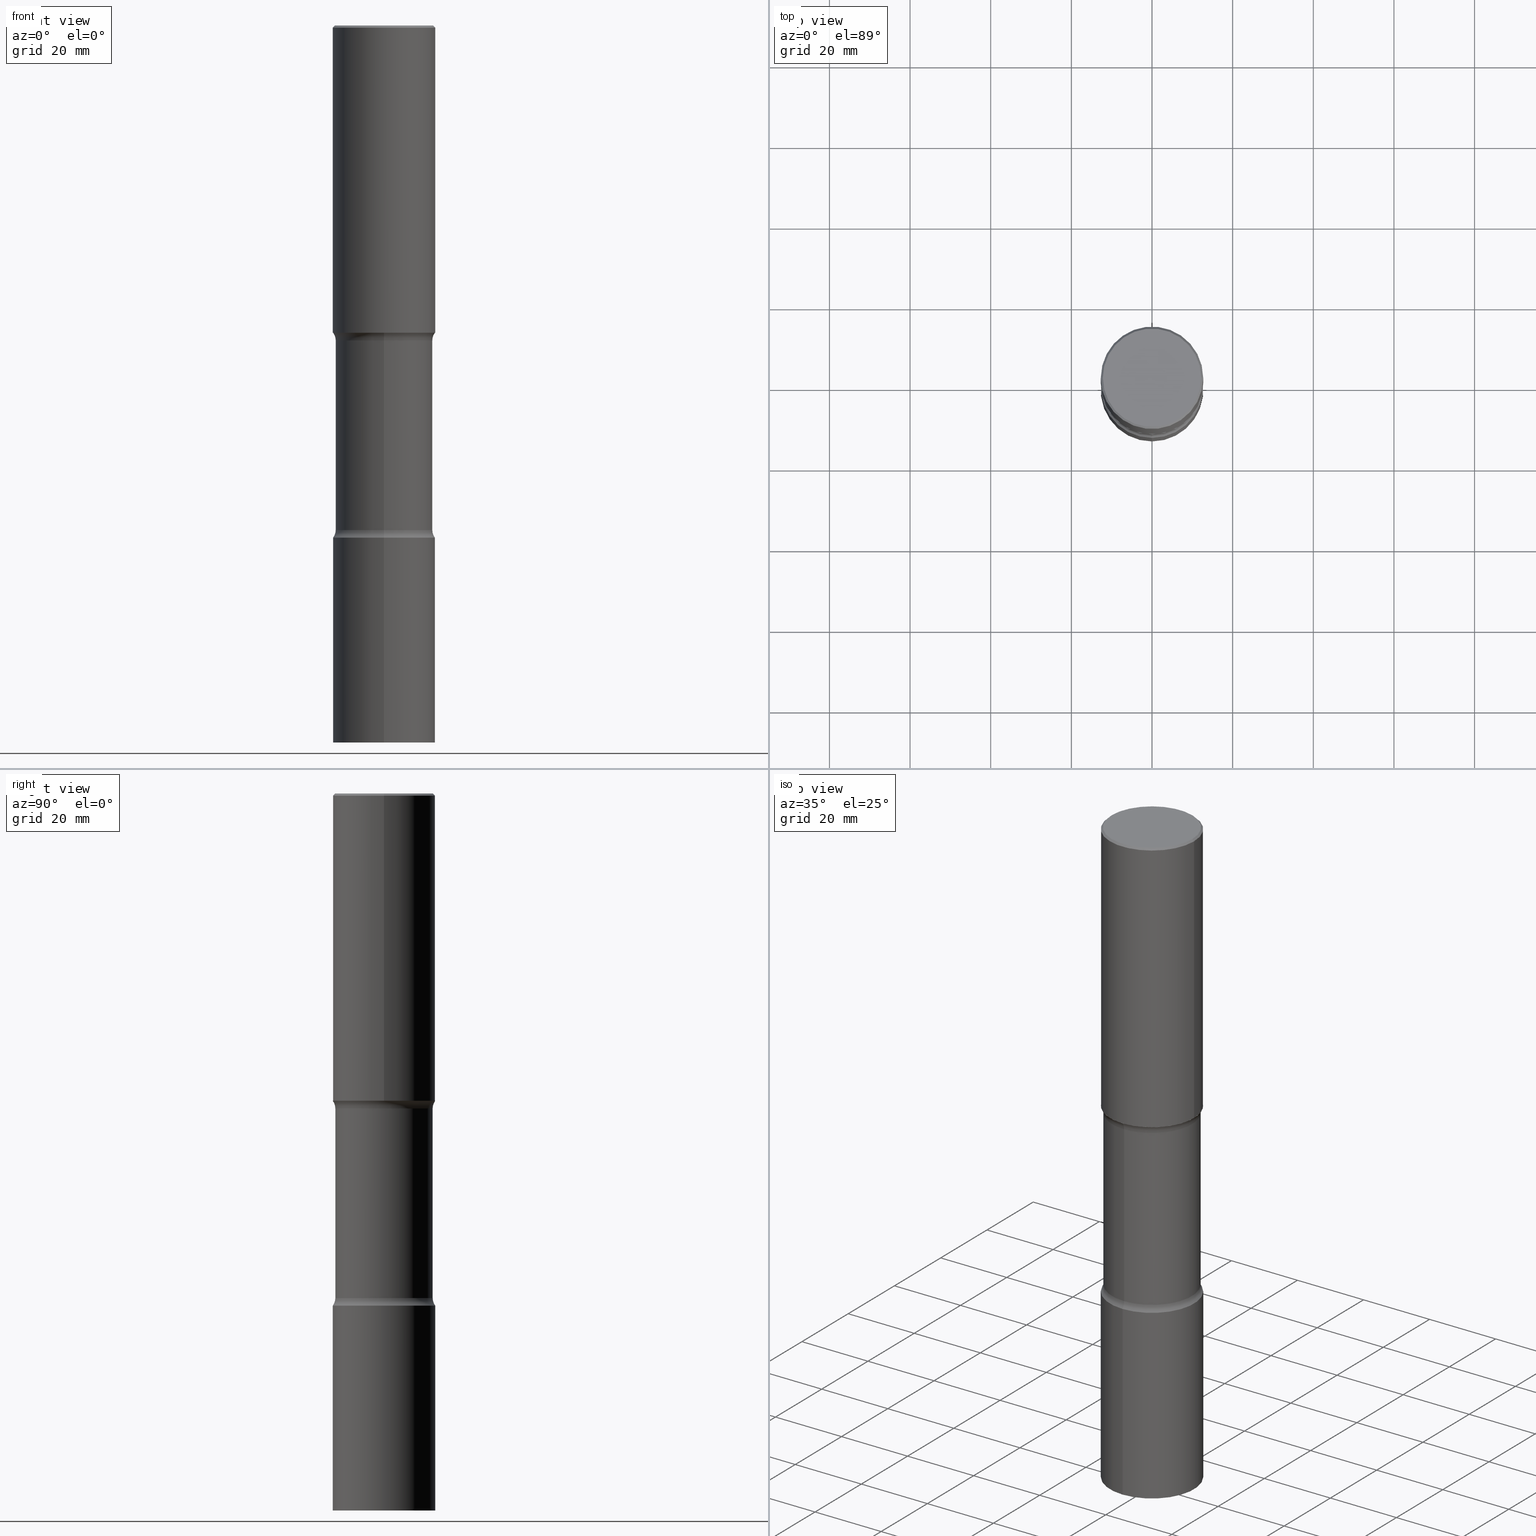
[diagram: canonical four-view strip — front | top / right | iso, engineering-drawing reading convention]
A machine part, canonical four-view strip (front | top / right | iso — engineering-drawing reading convention). The complete STEP part file that produces these views, byte-faithful:
ISO-10303-21;
HEADER;
FILE_DESCRIPTION (( 'STEP AP203' ),
    '1' );
FILE_NAME ('37955.STEP',
    '2024-03-11T13:31:00',
    ( '' ),
    ( '' ),
    'SwSTEP 2.0',
    'SolidWorks 2023',
    '' );
FILE_SCHEMA (( 'CONFIG_CONTROL_DESIGN' ));
ENDSEC;

DATA;
#1 = ORIENTED_EDGE ( 'NONE', *, *, #302, .T. ) ;
#2 = ORIENTED_EDGE ( 'NONE', *, *, #271, .T. ) ;
#3 = DIRECTION ( 'NONE',  ( 1.000000000000000000, -6.982962677686265922E-15, 4.876176775795935793E-29 ) ) ;
#4 = LINE ( 'NONE', #153, #121 ) ;
#5 = EDGE_LOOP ( 'NONE', ( #240, #502, #367, #490 ) ) ;
#6 = CARTESIAN_POINT ( 'NONE',  ( 1.222734403092567850E-28, -1.745740669421572042E-14, -4.999999999999998224 ) ) ;
#7 = AXIS2_PLACEMENT_3D ( 'NONE', #438, #268, #228 ) ;
#8 = FACE_OUTER_BOUND ( 'NONE', #177, .T. ) ;
#9 = CC_DESIGN_SECURITY_CLASSIFICATION ( #316, ( #331 ) ) ;
#10 = CARTESIAN_POINT ( 'NONE',  ( 0.4999999999999997224, -3.500078625662627502E-15, -0.02000000000000010103 ) ) ;
#11 = ORIENTED_EDGE ( 'NONE', *, *, #402, .T. ) ;
#12 = APPROVAL ( #111, 'UNSPECIFIED' ) ;
#13 = VECTOR ( 'NONE', #226, 39.37007874015748143 ) ;
#14 = AXIS2_PLACEMENT_3D ( 'NONE', #346, #301, #65 ) ;
#15 = ORIENTED_EDGE ( 'NONE', *, *, #443, .F. ) ;
#16 = ORIENTED_EDGE ( 'NONE', *, *, #186, .T. ) ;
#17 = DIRECTION ( 'NONE',  ( -1.000000000000000000, 6.982962677686265922E-15, -4.883557194083112340E-29 ) ) ;
#18 = EDGE_LOOP ( 'NONE', ( #84, #491, #30, #86 ) ) ;
#19 = DIRECTION ( 'NONE',  ( 6.982962677686265133E-15, 1.000000000000000000, -3.417455170156083034E-15 ) ) ;
#20 = EDGE_LOOP ( 'NONE', ( #210, #172, #151, #181 ) ) ;
#21 = APPROVAL_STATUS ( 'not_yet_approved' ) ;
#22 = AXIS2_PLACEMENT_3D ( 'NONE', #312, #503, #3 ) ;
#23 = CARTESIAN_POINT ( 'NONE',  ( 3.351822085289404787E-15, 0.4799999999999995937, -1.669508273909557867E-15 ) ) ;
#24 = COORDINATED_UNIVERSAL_TIME_OFFSET ( 5, 0, .BEHIND. ) ;
#25 = CARTESIAN_POINT ( 'NONE',  ( 1.222480514706871301E-28, -1.746104252040319053E-14, -4.999999999999998224 ) ) ;
#26 = EDGE_LOOP ( 'NONE', ( #1, #446, #15, #72 ) ) ;
#27 = PERSON_AND_ORGANIZATION_ROLE ( 'design_supplier' ) ;
#28 = CC_DESIGN_PERSON_AND_ORGANIZATION_ASSIGNMENT ( #501, #101, ( #448 ) ) ;
#29 = DIRECTION ( 'NONE',  ( -2.444961029413743836E-29, 3.492208504080639289E-15, 1.000000000000000000 ) ) ;
#30 = ORIENTED_EDGE ( 'NONE', *, *, #402, .F. ) ;
#31 = AXIS2_PLACEMENT_3D ( 'NONE', #35, #233, #430 ) ;
#32 = DIRECTION ( 'NONE',  ( 1.000000000000000000, -6.982962677686266711E-15, 0.000000000000000000 ) ) ;
#33 = ORIENTED_EDGE ( 'NONE', *, *, #60, .T. ) ;
#34 = APPLICATION_PROTOCOL_DEFINITION ( 'international standard', 'config_control_design', 1994, #109 ) ;
#35 = CARTESIAN_POINT ( 'NONE',  ( 1.222480514706871301E-28, -1.746104252040319053E-14, -4.999999999999998224 ) ) ;
#36 =( GEOMETRIC_REPRESENTATION_CONTEXT ( 3 ) GLOBAL_UNCERTAINTY_ASSIGNED_CONTEXT ( ( #106 ) ) GLOBAL_UNIT_ASSIGNED_CONTEXT ( ( #470, #463, #227 ) ) REPRESENTATION_CONTEXT ( 'NONE', 'WORKASPACE' ) );
#37 = CARTESIAN_POINT ( 'NONE',  ( 1.711472720589620405E-28, -2.444545952856446990E-14, -7.000000000000000000 ) ) ;
#38 = EDGE_CURVE ( 'NONE', #224, #281, #66, .T. ) ;
#39 = CARTESIAN_POINT ( 'NONE',  ( 1.191474063796412481E-28, -3.918008831735200685E-15, -2.999999999999999112 ) ) ;
#40 = DIRECTION ( 'NONE',  ( 2.445468806185136597E-29, -3.491481338843145583E-15, -1.000000000000000000 ) ) ;
#41 = DIRECTION ( 'NONE',  ( 2.497161003496522813E-29, -3.417455170156083034E-15, -1.000000000000000000 ) ) ;
#42 = AXIS2_PLACEMENT_3D ( 'NONE', #424, #67, #263 ) ;
#43 = CARTESIAN_POINT ( 'NONE',  ( 3.316907271901098961E-15, 0.4749999999999831024, -4.924999999999999822 ) ) ;
#44 = ORIENTED_EDGE ( 'NONE', *, *, #159, .T. ) ;
#45 = AXIS2_PLACEMENT_3D ( 'NONE', #223, #190, #427 ) ;
#47 = ORIENTED_EDGE ( 'NONE', *, *, #499, .T. ) ;
#46 = EDGE_CURVE ( 'NONE', #132, #308, #205, .T. ) ;
#48 = ORIENTED_EDGE ( 'NONE', *, *, #494, .F. ) ;
#49 = CARTESIAN_POINT ( 'NONE',  ( 4.189777606611879933E-15, 0.5999999999999827693, -4.925000000000000711 ) ) ;
#50 = ORIENTED_EDGE ( 'NONE', *, *, #324, .T. ) ;
#51 = EDGE_CURVE ( 'NONE', #308, #132, #283, .T. ) ;
#52 = DIRECTION ( 'NONE',  ( 1.000000000000000000, -6.982962677686267499E-15, 4.876176775795936353E-29 ) ) ;
#53 = ADVANCED_FACE ( 'NONE', ( #388 ), #142, .F. ) ;
#54 = CARTESIAN_POINT ( 'NONE',  ( 3.316907271901049263E-15, 0.4749999999999889866, -3.075000000000000178 ) ) ;
#55 = AXIS2_PLACEMENT_3D ( 'NONE', #116, #477, #472 ) ;
#56 = PERSON_AND_ORGANIZATION_ROLE ( 'creator' ) ;
#57 = AXIS2_PLACEMENT_3D ( 'NONE', #297, #189, #143 ) ;
#58 = CARTESIAN_POINT ( 'NONE',  ( 4.890937612370298557E-31, -6.982962677686327354E-17, -0.02000000000000010103 ) ) ;
#59 = ADVANCED_FACE ( 'NONE', ( #99 ), #303, .T. ) ;
#60 = EDGE_CURVE ( 'NONE', #433, #168, #126, .T. ) ;
#61 = DIRECTION ( 'NONE',  ( 6.982962677686265133E-15, 1.000000000000000000, -3.417455170156083034E-15 ) ) ;
#62 = DIRECTION ( 'NONE',  ( -6.982962677686265922E-15, -1.000000000000000000, 3.492208504080639684E-15 ) ) ;
#63 = DIRECTION ( 'NONE',  ( 2.438088387897960049E-29, -3.491481338843145188E-15, -1.000000000000000000 ) ) ;
#64 = PERSON_AND_ORGANIZATION ( #280, #458 ) ;
#65 = DIRECTION ( 'NONE',  ( 1.000000000000000000, 0.000000000000000000, 0.000000000000000000 ) ) ;
#66 = LINE ( 'NONE', #256, #13 ) ;
#67 = DIRECTION ( 'NONE',  ( 1.000000000000000000, -6.860497997771530774E-15, 4.841705438729500502E-29 ) ) ;
#68 = ORIENTED_EDGE ( 'NONE', *, *, #390, .T. ) ;
#69 = CARTESIAN_POINT ( 'NONE',  ( 1.222480514706871301E-28, -1.746104252040319053E-14, -4.999999999999998224 ) ) ;
#70 = APPROVAL_DATE_TIME ( #431, #12 ) ;
#71 = CARTESIAN_POINT ( 'NONE',  ( 0.000000000000000000, 0.000000000000000000, 0.000000000000000000 ) ) ;
#72 = ORIENTED_EDGE ( 'NONE', *, *, #186, .F. ) ;
#73 = CIRCLE ( 'NONE', #146, 0.1249999999999999584 ) ;
#74 = AXIS2_PLACEMENT_3D ( 'NONE', #134, #284, #371 ) ;
#75 = DIRECTION ( 'NONE',  ( 6.982962677686265922E-15, 1.000000000000000000, -3.417455170156083034E-15 ) ) ;
#76 = DIRECTION ( 'NONE',  ( -2.444961029413743555E-29, 3.492208504080639289E-15, 1.000000000000000000 ) ) ;
#77 = CARTESIAN_POINT ( 'NONE',  ( -4.116298798662843365E-15, -0.6000000000000107470, -3.074999999999996625 ) ) ;
#78 = AXIS2_PLACEMENT_3D ( 'NONE', #418, #465, #335 ) ;
#79 = AXIS2_PLACEMENT_3D ( 'NONE', #260, #299, #221 ) ;
#80 = DIRECTION ( 'NONE',  ( 6.982962677686265922E-15, 1.000000000000000000, -2.300503573612009450E-15 ) ) ;
#81 = LOCAL_TIME ( 9, 31, 0.000000000000000000, #288 ) ;
#82 = ORIENTED_EDGE ( 'NONE', *, *, #298, .F. ) ;
#83 = ORIENTED_EDGE ( 'NONE', *, *, #324, .F. ) ;
#84 = ORIENTED_EDGE ( 'NONE', *, *, #311, .T. ) ;
#85 = LOCAL_TIME ( 9, 31, 0.000000000000000000, #457 ) ;
#86 = ORIENTED_EDGE ( 'NONE', *, *, #271, .F. ) ;
#87 = CALENDAR_DATE ( 2024, 11, 3 ) ;
#88 = CARTESIAN_POINT ( 'NONE',  ( 7.424434616114944554E-29, -1.087289751662588185E-14, -3.074999999999998845 ) ) ;
#89 = ORIENTED_EDGE ( 'NONE', *, *, #276, .T. ) ;
#90 = EDGE_CURVE ( 'NONE', #164, #122, #138, .T. ) ;
#91 = DIRECTION ( 'NONE',  ( -6.982962677686269077E-15, -1.000000000000000000, 0.000000000000000000 ) ) ;
#92 = ORIENTED_EDGE ( 'NONE', *, *, #494, .T. ) ;
#93 = PERSON_AND_ORGANIZATION ( #280, #458 ) ;
#94 = PRODUCT_DEFINITION ( 'UNKNOWN', '', #331, #358 ) ;
#95 = CARTESIAN_POINT ( 'NONE',  ( 3.491481338843254840E-15, 0.4999999999999824585, -5.000000000000000000 ) ) ;
#96 = AXIS2_PLACEMENT_3D ( 'NONE', #23, #63, #461 ) ;
#97 = CIRCLE ( 'NONE', #206, 0.4999999999999998335 ) ;
#98 = DIRECTION ( 'NONE',  ( -6.982962677686268288E-15, -1.000000000000000000, 0.000000000000000000 ) ) ;
#99 = FACE_OUTER_BOUND ( 'NONE', #26, .T. ) ;
#100 = DATE_TIME_ROLE ( 'creation_date' ) ;
#101 = PERSON_AND_ORGANIZATION_ROLE ( 'design_owner' ) ;
#102 = EDGE_CURVE ( 'NONE', #281, #451, #252, .T. ) ;
#103 = DIRECTION ( 'NONE',  ( 2.497161003496523093E-29, -3.417455170156083034E-15, -1.000000000000000000 ) ) ;
#104 = APPLICATION_PROTOCOL_DEFINITION ( 'international standard', 'config_control_design', 1994, #182 ) ;
#105 = DIRECTION ( 'NONE',  ( 2.497161003496523093E-29, -3.417455170156083034E-15, -1.000000000000000000 ) ) ;
#106 = UNCERTAINTY_MEASURE_WITH_UNIT (LENGTH_MEASURE( 1.000000000000000082E-05 ), #470, 'distance_accuracy_value', 'NONE');
#107 = AXIS2_PLACEMENT_3D ( 'NONE', #384, #345, #32 ) ;
#108 = DIRECTION ( 'NONE',  ( 1.000000000000000000, -6.982962677686266711E-15, 4.876036955247133327E-29 ) ) ;
#109 = APPLICATION_CONTEXT ( 'configuration controlled 3d designs of mechanical parts and assemblies' ) ;
#110 = CARTESIAN_POINT ( 'NONE',  ( 4.890937612370298557E-31, -6.982962677686327354E-17, -0.02000000000000010103 ) ) ;
#111 = APPROVAL_STATUS ( 'not_yet_approved' ) ;
#112 = DIRECTION ( 'NONE',  ( 6.982962677686265133E-15, 1.000000000000000000, -3.450755360418017527E-15 ) ) ;
#113 = CARTESIAN_POINT ( 'NONE',  ( 7.417770215337909421E-29, -1.088244131785273239E-14, -3.074999999999998845 ) ) ;
#114 = ORIENTED_EDGE ( 'NONE', *, *, #338, .T. ) ;
#115 = CIRCLE ( 'NONE', #57, 0.4799999999999995937 ) ;
#116 = CARTESIAN_POINT ( 'NONE',  ( 1.222734403092567850E-28, -1.745740669421572042E-14, -4.999999999999998224 ) ) ;
#117 = DIRECTION ( 'NONE',  ( -6.982962677686265922E-15, -1.000000000000000000, 3.492208504080639684E-15 ) ) ;
#118 = CYLINDRICAL_SURFACE ( 'NONE', #294, 0.4999999999999998335 ) ;
#119 = EDGE_LOOP ( 'NONE', ( #250, #47 ) ) ;
#120 = AXIS2_PLACEMENT_3D ( 'NONE', #69, #393, #191 ) ;
#121 = VECTOR ( 'NONE', #313, 39.37007874015748143 ) ;
#122 = VERTEX_POINT ( 'NONE', #349 ) ;
#123 = EDGE_LOOP ( 'NONE', ( #50, #258, #332, #405 ) ) ;
#124 = ORIENTED_EDGE ( 'NONE', *, *, #46, .F. ) ;
#125 = DIRECTION ( 'NONE',  ( 2.497161003496523093E-29, -3.417455170156083034E-15, -1.000000000000000000 ) ) ;
#126 = CIRCLE ( 'NONE', #78, 0.4749999999999998668 ) ;
#127 = CIRCLE ( 'NONE', #42, 0.1249999999999997641 ) ;
#128 = VERTEX_POINT ( 'NONE', #188 ) ;
#129 = PERSON_AND_ORGANIZATION_ROLE ( 'classification_officer' ) ;
#130 = CARTESIAN_POINT ( 'NONE',  ( 3.552713678800670534E-15, 0.4999999999999822919, -5.000000000000000000 ) ) ;
#131 = DIMENSIONAL_EXPONENTS ( 1.000000000000000000, 0.000000000000000000, 0.000000000000000000, 0.000000000000000000, 0.000000000000000000, 0.000000000000000000, 0.000000000000000000 ) ;
#132 = VERTEX_POINT ( 'NONE', #340 ) ;
#133 = PRODUCT_DEFINITION_SHAPE ( 'NONE', 'NONE',  #94 ) ;
#134 = CARTESIAN_POINT ( 'NONE',  ( 6.435501798008941756E-29, -3.973871813642189428E-14, -6.999999999999998224 ) ) ;
#135 = CARTESIAN_POINT ( 'NONE',  ( 1.222480514706871301E-28, -1.746104252040319053E-14, -4.999999999999998224 ) ) ;
#136 = LINE ( 'NONE', #412, #197 ) ;
#137 = ORIENTED_EDGE ( 'NONE', *, *, #319, .F. ) ;
#138 = CIRCLE ( 'NONE', #407, 0.4999999999999998335 ) ;
#139 = AXIS2_PLACEMENT_3D ( 'NONE', #237, #450, #489 ) ;
#140 = CARTESIAN_POINT ( 'NONE',  ( -0.5000000000000000000, -1.719423142852647319E-15, -2.999999999999999556 ) ) ;
#141 = DIRECTION ( 'NONE',  ( -2.445468806185136877E-29, 3.491481338843145188E-15, 1.000000000000000000 ) ) ;
#142 = PLANE ( 'NONE',  #96 ) ;
#143 = DIRECTION ( 'NONE',  ( 1.000000000000000000, -6.982962677686266711E-15, 4.876036955247133327E-29 ) ) ;
#144 = DIRECTION ( 'NONE',  ( 6.982962677686265133E-15, 1.000000000000000000, -3.278217592397115073E-15 ) ) ;
#145 = EDGE_CURVE ( 'NONE', #273, #281, #504, .T. ) ;
#146 = AXIS2_PLACEMENT_3D ( 'NONE', #77, #272, #356 ) ;
#147 = CC_DESIGN_APPROVAL ( #435, ( #316 ) ) ;
#148 = COORDINATED_UNIVERSAL_TIME_OFFSET ( 5, 0, .BEHIND. ) ;
#149 = CARTESIAN_POINT ( 'NONE',  ( -3.258736548941305678E-15, -0.4750000000000244582, -6.999999999999997335 ) ) ;
#150 = CC_DESIGN_PERSON_AND_ORGANIZATION_ASSIGNMENT ( #300, #462, ( #94 ) ) ;
#151 = ORIENTED_EDGE ( 'NONE', *, *, #145, .T. ) ;
#152 = MECHANICAL_CONTEXT ( 'NONE', #109, 'mechanical' ) ;
#153 = CARTESIAN_POINT ( 'NONE',  ( 3.552713678800499352E-15, 0.4999999999999998335, -1.746104252040319250E-15 ) ) ;
#154 = CYLINDRICAL_SURFACE ( 'NONE', #488, 0.4750000000000001443 ) ;
#155 = AXIS2_PLACEMENT_3D ( 'NONE', #113, #471, #112 ) ;
#156 = CIRCLE ( 'NONE', #278, 0.4750000000000003109 ) ;
#157 = LINE ( 'NONE', #198, #235 ) ;
#158 = PLANE ( 'NONE',  #467 ) ;
#159 = EDGE_CURVE ( 'NONE', #362, #285, #213, .T. ) ;
#161 = EDGE_CURVE ( 'NONE', #128, #451, #306, .T. ) ;
#160 = ORIENTED_EDGE ( 'NONE', *, *, #51, .F. ) ;
#162 = AXIS2_PLACEMENT_3D ( 'NONE', #296, #183, #144 ) ;
#163 = CIRCLE ( 'NONE', #139, 0.5000000000000000000 ) ;
#164 = VERTEX_POINT ( 'NONE', #95 ) ;
#165 = EDGE_CURVE ( 'NONE', #451, #281, #277, .T. ) ;
#166 = ORIENTED_EDGE ( 'NONE', *, *, #161, .F. ) ;
#167 = DIRECTION ( 'NONE',  ( 2.445468806185136597E-29, -3.491481338843145583E-15, -1.000000000000000000 ) ) ;
#168 = VERTEX_POINT ( 'NONE', #54 ) ;
#169 = DIRECTION ( 'NONE',  ( 2.497161003496523093E-29, -3.417455170156083034E-15, -1.000000000000000000 ) ) ;
#170 = CLOSED_SHELL ( 'NONE', ( #59, #336, #351, #428, #275, #187, #179, #243 ) ) ;
#171 = LOCAL_TIME ( 9, 31, 0.000000000000000000, #148 ) ;
#172 = ORIENTED_EDGE ( 'NONE', *, *, #267, .T. ) ;
#173 = CARTESIAN_POINT ( 'NONE',  ( 1.203751807180647490E-28, -1.720473338264148338E-14, -4.924999999999998046 ) ) ;
#174 = DIRECTION ( 'NONE',  ( -2.445468806185136597E-29, 3.491481338843145583E-15, 1.000000000000000000 ) ) ;
#175 = PRODUCT_RELATED_PRODUCT_CATEGORY ( 'detail', '', ( #448 ) ) ;
#176 = CARTESIAN_POINT ( 'NONE',  ( 1.204393387046179415E-28, -1.719554559380248700E-14, -4.924999999999998046 ) ) ;
#177 = EDGE_LOOP ( 'NONE', ( #444, #89 ) ) ;
#178 = DATE_AND_TIME ( #290, #375 ) ;
#179 = ADVANCED_FACE ( 'NONE', ( #216 ), #269, .F. ) ;
#180 = FACE_OUTER_BOUND ( 'NONE', #20, .T. ) ;
#181 = ORIENTED_EDGE ( 'NONE', *, *, #165, .F. ) ;
#182 = APPLICATION_CONTEXT ( 'configuration controlled 3d designs of mechanical parts and assemblies' ) ;
#183 = DIRECTION ( 'NONE',  ( 2.497161003496523093E-29, -3.417455170156083034E-15, -1.000000000000000000 ) ) ;
#184 = APPROVAL_DATE_TIME ( #248, #435 ) ;
#185 = APPROVAL_PERSON_ORGANIZATION ( #341, #481, #333 ) ;
#186 = EDGE_CURVE ( 'NONE', #168, #323, #377, .T. ) ;
#187 = ADVANCED_FACE ( 'NONE', ( #8 ), #158, .F. ) ;
#188 = CARTESIAN_POINT ( 'NONE',  ( -0.4799999999999995937, 3.386736898677836436E-15, 1.280553747027767124E-17 ) ) ;
#189 = DIRECTION ( 'NONE',  ( -2.445468806185136597E-29, 3.491481338843145583E-15, 1.000000000000000000 ) ) ;
#190 = DIRECTION ( 'NONE',  ( 2.497161003496523093E-29, -3.417455170156083034E-15, -1.000000000000000000 ) ) ;
#191 = DIRECTION ( 'NONE',  ( -6.982962677686265922E-15, -1.000000000000000000, 4.370956789862822727E-15 ) ) ;
#192 = CIRCLE ( 'NONE', #155, 0.4749999999999998668 ) ;
#193 = AXIS2_PLACEMENT_3D ( 'NONE', #58, #167, #492 ) ;
#194 = DIRECTION ( 'NONE',  ( -2.444961029413743836E-29, 3.492208504080639289E-15, 1.000000000000000000 ) ) ;
#195 = DIRECTION ( 'NONE',  ( -6.982962677686265922E-15, -1.000000000000000000, 3.417455170156083034E-15 ) ) ;
#196 = PLANE ( 'NONE',  #55 ) ;
#197 = VECTOR ( 'NONE', #378, 39.37007874015748143 ) ;
#198 = CARTESIAN_POINT ( 'NONE',  ( -3.491481338843131778E-15, -0.4999999999999998335, 1.746104252040319250E-15 ) ) ;
#199 = MANIFOLD_SOLID_BREP ( 'Body-Move/Copy2[4]', #170 ) ;
#200 = DIRECTION ( 'NONE',  ( 6.982962677686265133E-15, 1.000000000000000000, -3.417455170156083034E-15 ) ) ;
#201 = MANIFOLD_SOLID_BREP ( 'Body-Move/Copy2[2]', #365 ) ;
#202 = EDGE_LOOP ( 'NONE', ( #239, #92, #114, #355 ) ) ;
#203 = EDGE_LOOP ( 'NONE', ( #11, #456 ) ) ;
#204 = CC_DESIGN_DATE_AND_TIME_ASSIGNMENT ( #178, #100, ( #94 ) ) ;
#205 = CIRCLE ( 'NONE', #321, 0.5000000000000001110 ) ;
#206 = AXIS2_PLACEMENT_3D ( 'NONE', #25, #29, #376 ) ;
#207 = EDGE_LOOP ( 'NONE', ( #83, #486 ) ) ;
#208 = EDGE_LOOP ( 'NONE', ( #413, #369 ) ) ;
#209 = CARTESIAN_POINT ( 'NONE',  ( 3.552713678800646080E-15, 0.4999999999999754086, -7.000000000000001776 ) ) ;
#210 = ORIENTED_EDGE ( 'NONE', *, *, #392, .F. ) ;
#211 = CALENDAR_DATE ( 2024, 11, 3 ) ;
#212 = DIRECTION ( 'NONE',  ( -2.445468806185136597E-29, 3.491481338843145583E-15, 1.000000000000000000 ) ) ;
#213 = CIRCLE ( 'NONE', #79, 0.4999999999999998335 ) ;
#214 = CC_DESIGN_PERSON_AND_ORGANIZATION_ASSIGNMENT ( #380, #56, ( #331 ) ) ;
#215 = AXIS2_PLACEMENT_3D ( 'NONE', #37, #194, #354 ) ;
#216 = FACE_OUTER_BOUND ( 'NONE', #314, .T. ) ;
#217 = CALENDAR_DATE ( 2024, 11, 3 ) ;
#218 = DIRECTION ( 'NONE',  ( 2.497161003496523093E-29, -3.417455170156083034E-15, -1.000000000000000000 ) ) ;
#219 = ADVANCED_FACE ( 'NONE', ( #395 ), #118, .T. ) ;
#220 = EDGE_CURVE ( 'NONE', #433, #132, #73, .T. ) ;
#221 = DIRECTION ( 'NONE',  ( -6.982962677686265922E-15, -1.000000000000000000, 4.370956789862822727E-15 ) ) ;
#222 = CARTESIAN_POINT ( 'NONE',  ( 1.203751807180647490E-28, -1.720473338264148338E-14, -4.924999999999998046 ) ) ;
#223 = CARTESIAN_POINT ( 'NONE',  ( 1.721912715406176368E-28, -2.429595286071535581E-14, -6.999999999999998224 ) ) ;
#224 = VERTEX_POINT ( 'NONE', #318 ) ;
#225 = AXIS2_PLACEMENT_3D ( 'NONE', #88, #169, #200 ) ;
#226 = DIRECTION ( 'NONE',  ( 0.7071067811865476838, -7.319954787623257623E-15, -0.7071067811865473507 ) ) ;
#227 =( NAMED_UNIT ( * ) SI_UNIT ( $, .STERADIAN. ) SOLID_ANGLE_UNIT ( ) );
#228 = DIRECTION ( 'NONE',  ( 1.000000000000000000, -6.982962677686266711E-15, 0.000000000000000000 ) ) ;
#229 = CARTESIAN_POINT ( 'NONE',  ( -3.131554243005659264E-46, 4.471029511141341874E-32, 1.280553747030123384E-17 ) ) ;
#230 = FACE_OUTER_BOUND ( 'NONE', #238, .T. ) ;
#231 = CIRCLE ( 'NONE', #437, 0.1249999999999997641 ) ;
#232 = DIRECTION ( 'NONE',  ( 6.982962677686265133E-15, 1.000000000000000000, -2.300503573612010239E-15 ) ) ;
#233 = DIRECTION ( 'NONE',  ( 2.497161003496523093E-29, -3.417455170156083034E-15, -1.000000000000000000 ) ) ;
#234 = DIRECTION ( 'NONE',  ( 2.497161003496523093E-29, -3.417455170156083034E-15, -1.000000000000000000 ) ) ;
#235 = VECTOR ( 'NONE', #76, 39.37007874015748143 ) ;
#236 = CC_DESIGN_APPROVAL ( #481, ( #331 ) ) ;
#237 = CARTESIAN_POINT ( 'NONE',  ( 7.336406418555408669E-29, -1.047444401652943478E-14, -2.999999999999999556 ) ) ;
#238 = EDGE_LOOP ( 'NONE', ( #82, #33, #16, #493 ) ) ;
#239 = ORIENTED_EDGE ( 'NONE', *, *, #276, .F. ) ;
#240 = ORIENTED_EDGE ( 'NONE', *, *, #220, .F. ) ;
#241 = AXIS2_PLACEMENT_3D ( 'NONE', #254, #379, #61 ) ;
#242 = AXIS2_PLACEMENT_3D ( 'NONE', #229, #422, #108 ) ;
#244 = ORIENTED_EDGE ( 'NONE', *, *, #46, .T. ) ;
#243 = ADVANCED_FACE ( 'NONE', ( #230 ), #154, .T. ) ;
#245 = DATE_TIME_ROLE ( 'classification_date' ) ;
#246 = DIRECTION ( 'NONE',  ( 6.982962677686265133E-15, 1.000000000000000000, -3.417455170156083034E-15 ) ) ;
#247 = ORIENTED_EDGE ( 'NONE', *, *, #220, .T. ) ;
#248 = DATE_AND_TIME ( #211, #81 ) ;
#249 = FACE_OUTER_BOUND ( 'NONE', #123, .T. ) ;
#250 = ORIENTED_EDGE ( 'NONE', *, *, #485, .T. ) ;
#251 = FACE_OUTER_BOUND ( 'NONE', #18, .T. ) ;
#252 = CIRCLE ( 'NONE', #107, 0.4999999999999997224 ) ;
#253 = CONICAL_SURFACE ( 'NONE', #193, 0.4999999999999997224, 0.7853981633974485010 ) ;
#254 = CARTESIAN_POINT ( 'NONE',  ( 1.204393387046179415E-28, -1.719554559380248700E-14, -4.924999999999998046 ) ) ;
#255 = CARTESIAN_POINT ( 'NONE',  ( 4.189777606611833390E-15, 0.5999999999999889866, -3.075000000000001066 ) ) ;
#256 = CARTESIAN_POINT ( 'NONE',  ( 0.4999999999999997224, -3.500078625662627502E-15, -0.02000000000000010103 ) ) ;
#257 = SHAPE_DEFINITION_REPRESENTATION ( #133, #404 ) ;
#258 = ORIENTED_EDGE ( 'NONE', *, *, #392, .T. ) ;
#259 = ADVANCED_FACE ( 'NONE', ( #397 ), #196, .F. ) ;
#260 = CARTESIAN_POINT ( 'NONE',  ( 1.711472720589620405E-28, -2.444545952856446990E-14, -7.000000000000000000 ) ) ;
#261 = CIRCLE ( 'NONE', #359, 0.4750000000000003109 ) ;
#262 = ORIENTED_EDGE ( 'NONE', *, *, #499, .F. ) ;
#263 = DIRECTION ( 'NONE',  ( 6.860497997771530774E-15, 1.000000000000000000, 0.000000000000000000 ) ) ;
#264 = DIRECTION ( 'NONE',  ( 1.000000000000000000, -6.982962677686266711E-15, 0.000000000000000000 ) ) ;
#265 = CALENDAR_DATE ( 2024, 11, 3 ) ;
#266 = FACE_OUTER_BOUND ( 'NONE', #483, .T. ) ;
#267 = EDGE_CURVE ( 'NONE', #482, #273, #442, .T. ) ;
#268 = DIRECTION ( 'NONE',  ( -2.445468806185136597E-29, 3.491481338843145583E-15, 1.000000000000000000 ) ) ;
#269 = TOROIDAL_SURFACE ( 'NONE', #241, 0.5999999999999999778, 0.1249999999999997918 ) ;
#270 = CC_DESIGN_APPROVAL ( #12, ( #94 ) ) ;
#271 = EDGE_CURVE ( 'NONE', #285, #287, #157, .T. ) ;
#272 = DIRECTION ( 'NONE',  ( 1.000000000000000000, -6.860497997771530774E-15, 4.841705438729500502E-29 ) ) ;
#273 = VERTEX_POINT ( 'NONE', #399 ) ;
#274 = CARTESIAN_POINT ( 'NONE',  ( -3.491481338843009504E-15, -0.5000000000000173195, -4.999999999999995559 ) ) ;
#275 = ADVANCED_FACE ( 'NONE', ( #353 ), #317, .F. ) ;
#276 = EDGE_CURVE ( 'NONE', #122, #164, #305, .T. ) ;
#277 = CIRCLE ( 'NONE', #473, 0.4999999999999997224 ) ;
#278 = AXIS2_PLACEMENT_3D ( 'NONE', #173, #218, #80 ) ;
#279 = EDGE_LOOP ( 'NONE', ( #137, #44, #2, #423 ) ) ;
#280 = PERSON ( 'UNSPECIFIED', 'UNSPECIFIED', 'UNSPECIFIED', ('UNSPECIFIED'), ('UNSPECIFIED'), ('UNSPECIFIED') ) ;
#281 = VERTEX_POINT ( 'NONE', #10 ) ;
#282 = ORIENTED_EDGE ( 'NONE', *, *, #38, .T. ) ;
#283 = CIRCLE ( 'NONE', #162, 0.5000000000000001110 ) ;
#284 = DIRECTION ( 'NONE',  ( 2.444961029413743275E-29, -3.492208504080639289E-15, -1.000000000000000000 ) ) ;
#285 = VERTEX_POINT ( 'NONE', #436 ) ;
#286 = CYLINDRICAL_SURFACE ( 'NONE', #468, 0.4999999999999998335 ) ;
#287 = VERTEX_POINT ( 'NONE', #274 ) ;
#288 = COORDINATED_UNIVERSAL_TIME_OFFSET ( 5, 0, .BEHIND. ) ;
#289 = DIRECTION ( 'NONE',  ( -2.444961029413743836E-29, 3.492208504080639289E-15, 1.000000000000000000 ) ) ;
#290 = CALENDAR_DATE ( 2024, 11, 3 ) ;
#291 = ADVANCED_FACE ( 'NONE', ( #266 ), #374, .T. ) ;
#292 = DIRECTION ( 'NONE',  ( 2.497161003496523093E-29, -3.417455170156083034E-15, -1.000000000000000000 ) ) ;
#293 = EDGE_CURVE ( 'NONE', #325, #287, #394, .T. ) ;
#294 = AXIS2_PLACEMENT_3D ( 'NONE', #71, #474, #117 ) ;
#295 = TOROIDAL_SURFACE ( 'NONE', #225, 0.5999999999999998668, 0.1250000000000000000 ) ;
#296 = CARTESIAN_POINT ( 'NONE',  ( 7.230483140075667947E-29, -1.062613218009102367E-14, -2.999999999999998668 ) ) ;
#297 = CARTESIAN_POINT ( 'NONE',  ( -3.131554243005659264E-46, 4.471029511141341874E-32, 1.280553747030123384E-17 ) ) ;
#298 = EDGE_CURVE ( 'NONE', #433, #447, #508, .T. ) ;
#299 = DIRECTION ( 'NONE',  ( -2.444961029413743836E-29, 3.492208504080639289E-15, 1.000000000000000000 ) ) ;
#300 = PERSON_AND_ORGANIZATION ( #280, #458 ) ;
#301 = DIRECTION ( 'NONE',  ( 0.000000000000000000, 0.000000000000000000, 1.000000000000000000 ) ) ;
#302 = EDGE_CURVE ( 'NONE', #168, #433, #192, .T. ) ;
#303 = CYLINDRICAL_SURFACE ( 'NONE', #45, 0.4750000000000001443 ) ;
#304 = CARTESIAN_POINT ( 'NONE',  ( -0.4999999999999997224, 3.421651712066268085E-15, -0.02000000000000010103 ) ) ;
#305 = CIRCLE ( 'NONE', #31, 0.4999999999999998335 ) ;
#306 = LINE ( 'NONE', #469, #506 ) ;
#307 = LOCAL_TIME ( 9, 31, 0.000000000000000000, #337 ) ;
#308 = VERTEX_POINT ( 'NONE', #432 ) ;
#309 = CARTESIAN_POINT ( 'NONE',  ( -3.344492773913501414E-15, -0.4750000000000176303, -4.924999999999997158 ) ) ;
#310 = DIRECTION ( 'NONE',  ( 2.497161003496522813E-29, -3.417455170156083034E-15, -1.000000000000000000 ) ) ;
#311 = EDGE_CURVE ( 'NONE', #285, #362, #479, .T. ) ;
#312 = CARTESIAN_POINT ( 'NONE',  ( 7.336406418555408669E-29, -1.047444401652943478E-14, -2.999999999999999556 ) ) ;
#313 = DIRECTION ( 'NONE',  ( -2.444961029413743555E-29, 3.492208504080639289E-15, 1.000000000000000000 ) ) ;
#314 = EDGE_LOOP ( 'NONE', ( #48, #454, #68, #320 ) ) ;
#315 = CARTESIAN_POINT ( 'NONE',  ( 1.721912715406176368E-28, -2.429595286071535581E-14, -6.999999999999998224 ) ) ;
#316 = SECURITY_CLASSIFICATION ( '', '', #370 ) ;
#317 = PLANE ( 'NONE',  #425 ) ;
#318 = CARTESIAN_POINT ( 'NONE',  ( 0.4799999999999995937, -3.396558832296480127E-15, 1.280553747032483033E-17 ) ) ;
#319 = EDGE_CURVE ( 'NONE', #362, #325, #4, .T. ) ;
#320 = ORIENTED_EDGE ( 'NONE', *, *, #443, .T. ) ;
#321 = AXIS2_PLACEMENT_3D ( 'NONE', #420, #103, #391 ) ;
#322 = AXIS2_PLACEMENT_3D ( 'NONE', #176, #125, #246 ) ;
#323 = VERTEX_POINT ( 'NONE', #43 ) ;
#324 = EDGE_CURVE ( 'NONE', #273, #482, #163, .T. ) ;
#325 = VERTEX_POINT ( 'NONE', #130 ) ;
#326 = CARTESIAN_POINT ( 'NONE',  ( 0.000000000000000000, 0.000000000000000000, 0.000000000000000000 ) ) ;
#327 = ADVANCED_FACE ( 'NONE', ( #251 ), #286, .T. ) ;
#328 = ORIENTED_EDGE ( 'NONE', *, *, #360, .F. ) ;
#329 = CLOSED_SHELL ( 'NONE', ( #327, #219, #259, #445 ) ) ;
#330 = CARTESIAN_POINT ( 'NONE',  ( -3.344492773913547957E-15, -0.4750000000000106914, -3.074999999999997069 ) ) ;
#331 = PRODUCT_DEFINITION_FORMATION_WITH_SPECIFIED_SOURCE ( 'ANY', '', #448, .NOT_KNOWN. ) ;
#332 = ORIENTED_EDGE ( 'NONE', *, *, #102, .F. ) ;
#333 = APPROVAL_ROLE ( '' ) ;
#334 = FACE_OUTER_BOUND ( 'NONE', #208, .T. ) ;
#336 = ADVANCED_FACE ( 'NONE', ( #453 ), #344, .F. ) ;
#335 = DIRECTION ( 'NONE',  ( 6.982962677686265133E-15, 1.000000000000000000, -3.450755360418017527E-15 ) ) ;
#337 = COORDINATED_UNIVERSAL_TIME_OFFSET ( 5, 0, .BEHIND. ) ;
#338 = EDGE_CURVE ( 'NONE', #447, #323, #261, .T. ) ;
#339 = FACE_OUTER_BOUND ( 'NONE', #5, .T. ) ;
#340 = CARTESIAN_POINT ( 'NONE',  ( -3.430248998885693206E-15, -0.5000000000000106581, -2.999999999999996891 ) ) ;
#341 = PERSON_AND_ORGANIZATION ( #280, #458 ) ;
#342 = CC_DESIGN_PERSON_AND_ORGANIZATION_ASSIGNMENT ( #452, #129, ( #316 ) ) ;
#343 = CARTESIAN_POINT ( 'NONE',  ( 7.424434616114944554E-29, -1.087289751662588185E-14, -3.074999999999998845 ) ) ;
#344 = TOROIDAL_SURFACE ( 'NONE', #322, 0.5999999999999999778, 0.1249999999999997918 ) ;
#345 = DIRECTION ( 'NONE',  ( -2.445468806185136597E-29, 3.491481338843145583E-15, 1.000000000000000000 ) ) ;
#346 = CARTESIAN_POINT ( 'NONE',  ( 0.000000000000000000, 0.000000000000000000, 0.000000000000000000 ) ) ;
#347 = ORIENTED_EDGE ( 'NONE', *, *, #102, .T. ) ;
#348 = FACE_OUTER_BOUND ( 'NONE', #207, .T. ) ;
#349 = CARTESIAN_POINT ( 'NONE',  ( -3.430248998885642719E-15, -0.5000000000000173195, -4.999999999999995559 ) ) ;
#350 = PERSON_AND_ORGANIZATION ( #280, #458 ) ;
#351 = ADVANCED_FACE ( 'NONE', ( #417 ), #295, .F. ) ;
#352 = AXIS2_PLACEMENT_3D ( 'NONE', #478, #40, #357 ) ;
#353 = FACE_OUTER_BOUND ( 'NONE', #383, .T. ) ;
#354 = DIRECTION ( 'NONE',  ( -6.982962677686265922E-15, -1.000000000000000000, 4.370956789862822727E-15 ) ) ;
#355 = ORIENTED_EDGE ( 'NONE', *, *, #390, .F. ) ;
#356 = DIRECTION ( 'NONE',  ( 6.860497997771532351E-15, 1.000000000000000000, 0.000000000000000000 ) ) ;
#357 = DIRECTION ( 'NONE',  ( -1.000000000000000000, 6.982962677686266711E-15, 0.000000000000000000 ) ) ;
#358 = DESIGN_CONTEXT ( 'detailed design', #182, 'design' ) ;
#359 = AXIS2_PLACEMENT_3D ( 'NONE', #222, #292, #409 ) ;
#360 = EDGE_CURVE ( 'NONE', #168, #308, #507, .T. ) ;
#361 = CARTESIAN_POINT ( 'NONE',  ( 3.316907271901149448E-15, 0.4749999999999758304, -7.000000000000000000 ) ) ;
#362 = VERTEX_POINT ( 'NONE', #209 ) ;
#364 = ADVANCED_FACE ( 'NONE', ( #249 ), #368, .T. ) ;
#363 = ORIENTED_EDGE ( 'NONE', *, *, #38, .F. ) ;
#365 = CLOSED_SHELL ( 'NONE', ( #364, #403, #291, #53, #460, #411 ) ) ;
#366 = AXIS2_PLACEMENT_3D ( 'NONE', #326, #212, #498 ) ;
#367 = ORIENTED_EDGE ( 'NONE', *, *, #360, .T. ) ;
#368 = CYLINDRICAL_SURFACE ( 'NONE', #475, 0.4999999999999998335 ) ;
#369 = ORIENTED_EDGE ( 'NONE', *, *, #159, .F. ) ;
#370 = SECURITY_CLASSIFICATION_LEVEL ( 'unclassified' ) ;
#371 = DIRECTION ( 'NONE',  ( 6.982962677686265922E-15, 1.000000000000000000, -3.492208504080639289E-15 ) ) ;
#372 = ORIENTED_EDGE ( 'NONE', *, *, #161, .T. ) ;
#373 = DATE_AND_TIME ( #217, #85 ) ;
#374 = CONICAL_SURFACE ( 'NONE', #352, 0.4999999999999997224, 0.7853981633974485010 ) ;
#375 = LOCAL_TIME ( 9, 31, 0.000000000000000000, #24 ) ;
#376 = DIRECTION ( 'NONE',  ( -6.982962677686265922E-15, -1.000000000000000000, 4.370956789862822727E-15 ) ) ;
#377 = LINE ( 'NONE', #361, #400 ) ;
#378 = DIRECTION ( 'NONE',  ( -2.445468806185136877E-29, 3.491481338843145188E-15, 1.000000000000000000 ) ) ;
#379 = DIRECTION ( 'NONE',  ( 2.497161003496523093E-29, -3.417455170156083034E-15, -1.000000000000000000 ) ) ;
#380 = PERSON_AND_ORGANIZATION ( #280, #458 ) ;
#381 = MANIFOLD_SOLID_BREP ( 'Body-Move/Copy2[1]', #329 ) ;
#382 = FACE_OUTER_BOUND ( 'NONE', #408, .T. ) ;
#383 = EDGE_LOOP ( 'NONE', ( #160, #124 ) ) ;
#384 = CARTESIAN_POINT ( 'NONE',  ( 4.890937612370298557E-31, -6.982962677686327354E-17, -0.02000000000000010103 ) ) ;
#385 = APPROVAL_STATUS ( 'not_yet_approved' ) ;
#386 =( LENGTH_UNIT ( ) NAMED_UNIT ( * ) SI_UNIT ( $, .METRE. ) );
#387 = TOROIDAL_SURFACE ( 'NONE', #396, 0.5999999999999998668, 0.1250000000000000000 ) ;
#388 = FACE_OUTER_BOUND ( 'NONE', #119, .T. ) ;
#389 = CC_DESIGN_PERSON_AND_ORGANIZATION_ASSIGNMENT ( #64, #27, ( #331 ) ) ;
#390 = EDGE_CURVE ( 'NONE', #164, #323, #231, .T. ) ;
#391 = DIRECTION ( 'NONE',  ( 6.982962677686265133E-15, 1.000000000000000000, -3.278217592397115073E-15 ) ) ;
#392 = EDGE_CURVE ( 'NONE', #482, #451, #136, .T. ) ;
#393 = DIRECTION ( 'NONE',  ( -2.444961029413743836E-29, 3.492208504080639289E-15, 1.000000000000000000 ) ) ;
#394 = CIRCLE ( 'NONE', #120, 0.4999999999999998335 ) ;
#395 = FACE_OUTER_BOUND ( 'NONE', #279, .T. ) ;
#396 = AXIS2_PLACEMENT_3D ( 'NONE', #343, #495, #19 ) ;
#397 = FACE_OUTER_BOUND ( 'NONE', #203, .T. ) ;
#398 = DIRECTION ( 'NONE',  ( 2.497161003496522813E-29, -3.417455170156083034E-15, -1.000000000000000000 ) ) ;
#399 = CARTESIAN_POINT ( 'NONE',  ( 0.5000000000000000000, -1.396592535537256813E-14, -2.999999999999999556 ) ) ;
#400 = VECTOR ( 'NONE', #398, 39.37007874015748143 ) ;
#401 = DIRECTION ( 'NONE',  ( -2.445468806185136597E-29, 3.491481338843145583E-15, 1.000000000000000000 ) ) ;
#402 = EDGE_CURVE ( 'NONE', #287, #325, #97, .T. ) ;
#403 = ADVANCED_FACE ( 'NONE', ( #382 ), #253, .T. ) ;
#404 = ADVANCED_BREP_SHAPE_REPRESENTATION ( '37955', ( #381, #201, #199, #14 ), #36 ) ;
#405 = ORIENTED_EDGE ( 'NONE', *, *, #145, .F. ) ;
#406 = ORIENTED_EDGE ( 'NONE', *, *, #485, .F. ) ;
#407 = AXIS2_PLACEMENT_3D ( 'NONE', #135, #105, #496 ) ;
#408 = EDGE_LOOP ( 'NONE', ( #262, #282, #347, #166 ) ) ;
#409 = DIRECTION ( 'NONE',  ( 6.982962677686265922E-15, 1.000000000000000000, -2.300503573612009450E-15 ) ) ;
#410 = ORIENTED_EDGE ( 'NONE', *, *, #60, .F. ) ;
#411 = ADVANCED_FACE ( 'NONE', ( #180 ), #419, .T. ) ;
#412 = CARTESIAN_POINT ( 'NONE',  ( -0.4999999999999998335, 3.552713678800499746E-15, -2.459467545127452330E-29 ) ) ;
#413 = ORIENTED_EDGE ( 'NONE', *, *, #311, .F. ) ;
#414 = APPROVAL_DATE_TIME ( #487, #481 ) ;
#415 = VECTOR ( 'NONE', #310, 39.37007874015748143 ) ;
#416 = CIRCLE ( 'NONE', #242, 0.4799999999999995937 ) ;
#417 = FACE_OUTER_BOUND ( 'NONE', #480, .T. ) ;
#418 = CARTESIAN_POINT ( 'NONE',  ( 7.417770215337909421E-29, -1.088244131785273239E-14, -3.074999999999998845 ) ) ;
#419 = CYLINDRICAL_SURFACE ( 'NONE', #366, 0.4999999999999998335 ) ;
#420 = CARTESIAN_POINT ( 'NONE',  ( 7.230483140075667947E-29, -1.062613218009102367E-14, -2.999999999999998668 ) ) ;
#421 = APPROVAL_ROLE ( '' ) ;
#422 = DIRECTION ( 'NONE',  ( -2.445468806185136597E-29, 3.491481338843145583E-15, 1.000000000000000000 ) ) ;
#423 = ORIENTED_EDGE ( 'NONE', *, *, #293, .F. ) ;
#424 = CARTESIAN_POINT ( 'NONE',  ( -4.116298798662798399E-15, -0.6000000000000171863, -4.924999999999996270 ) ) ;
#425 = AXIS2_PLACEMENT_3D ( 'NONE', #39, #41, #75 ) ;
#426 = AXIS2_PLACEMENT_3D ( 'NONE', #255, #441, #91 ) ;
#427 = DIRECTION ( 'NONE',  ( 6.982962677686265133E-15, 1.000000000000000000, -2.300503573612010239E-15 ) ) ;
#428 = ADVANCED_FACE ( 'NONE', ( #339 ), #387, .F. ) ;
#429 = LENGTH_MEASURE_WITH_UNIT ( LENGTH_MEASURE( 0.02539999999999999897 ), #386 );
#430 = DIRECTION ( 'NONE',  ( 6.982962677686265922E-15, 1.000000000000000000, -4.370956789862822727E-15 ) ) ;
#431 = DATE_AND_TIME ( #265, #171 ) ;
#432 = CARTESIAN_POINT ( 'NONE',  ( 3.491481338843205536E-15, 0.4999999999999893974, -3.000000000000000444 ) ) ;
#433 = VERTEX_POINT ( 'NONE', #330 ) ;
#434 = VECTOR ( 'NONE', #141, 39.37007874015748143 ) ;
#435 = APPROVAL ( #385, 'UNSPECIFIED' ) ;
#436 = CARTESIAN_POINT ( 'NONE',  ( -3.491481338842960595E-15, -0.5000000000000243139, -6.999999999999997335 ) ) ;
#437 = AXIS2_PLACEMENT_3D ( 'NONE', #49, #17, #98 ) ;
#438 = CARTESIAN_POINT ( 'NONE',  ( 7.336406418555408669E-29, -1.047444401652943478E-14, -2.999999999999999556 ) ) ;
#439 = DIRECTION ( 'NONE',  ( -2.497161003496522813E-29, 3.417455170156083034E-15, 1.000000000000000000 ) ) ;
#440 = CC_DESIGN_DATE_AND_TIME_ASSIGNMENT ( #373, #245, ( #316 ) ) ;
#441 = DIRECTION ( 'NONE',  ( -1.000000000000000000, 6.982962677686265922E-15, -4.883557194083112340E-29 ) ) ;
#442 = CIRCLE ( 'NONE', #7, 0.5000000000000000000 ) ;
#443 = EDGE_CURVE ( 'NONE', #323, #447, #156, .T. ) ;
#444 = ORIENTED_EDGE ( 'NONE', *, *, #90, .T. ) ;
#445 = ADVANCED_FACE ( 'NONE', ( #334 ), #484, .T. ) ;
#446 = ORIENTED_EDGE ( 'NONE', *, *, #298, .T. ) ;
#447 = VERTEX_POINT ( 'NONE', #309 ) ;
#448 = PRODUCT ( '37955', '37955', '', ( #152 ) ) ;
#449 = APPROVAL_PERSON_ORGANIZATION ( #93, #435, #421 ) ;
#450 = DIRECTION ( 'NONE',  ( -2.445468806185136597E-29, 3.491481338843145583E-15, 1.000000000000000000 ) ) ;
#451 = VERTEX_POINT ( 'NONE', #304 ) ;
#452 = PERSON_AND_ORGANIZATION ( #280, #458 ) ;
#453 = FACE_OUTER_BOUND ( 'NONE', #202, .T. ) ;
#454 = ORIENTED_EDGE ( 'NONE', *, *, #90, .F. ) ;
#455 = CARTESIAN_POINT ( 'NONE',  ( 0.000000000000000000, 0.000000000000000000, 0.000000000000000000 ) ) ;
#456 = ORIENTED_EDGE ( 'NONE', *, *, #293, .T. ) ;
#457 = COORDINATED_UNIVERSAL_TIME_OFFSET ( 5, 0, .BEHIND. ) ;
#458 = ORGANIZATION ( 'UNSPECIFIED', 'UNSPECIFIED', '' ) ;
#459 = CARTESIAN_POINT ( 'NONE',  ( 0.000000000000000000, 0.000000000000000000, 0.000000000000000000 ) ) ;
#460 = ADVANCED_FACE ( 'NONE', ( #348 ), #466, .F. ) ;
#461 = DIRECTION ( 'NONE',  ( -1.000000000000000000, 6.982962677686265922E-15, -4.876176775795935793E-29 ) ) ;
#462 = PERSON_AND_ORGANIZATION_ROLE ( 'creator' ) ;
#463 =( NAMED_UNIT ( * ) PLANE_ANGLE_UNIT ( ) SI_UNIT ( $, .RADIAN. ) );
#464 = DIRECTION ( 'NONE',  ( -0.7071067811865476838, 2.468850131082258638E-15, -0.7071067811865473507 ) ) ;
#465 = DIRECTION ( 'NONE',  ( 2.497161003496523093E-29, -3.417455170156083034E-15, -1.000000000000000000 ) ) ;
#466 = PLANE ( 'NONE',  #22 ) ;
#467 = AXIS2_PLACEMENT_3D ( 'NONE', #6, #439, #195 ) ;
#468 = AXIS2_PLACEMENT_3D ( 'NONE', #455, #289, #62 ) ;
#469 = CARTESIAN_POINT ( 'NONE',  ( -0.4999999999999997224, 3.421651712066268085E-15, -0.02000000000000010103 ) ) ;
#470 =( CONVERSION_BASED_UNIT ( 'INCH', #429 ) LENGTH_UNIT ( ) NAMED_UNIT ( #131 ) );
#471 = DIRECTION ( 'NONE',  ( 2.497161003496523093E-29, -3.417455170156083034E-15, -1.000000000000000000 ) ) ;
#472 = DIRECTION ( 'NONE',  ( 6.982962677686265922E-15, 1.000000000000000000, -3.492208504080639289E-15 ) ) ;
#473 = AXIS2_PLACEMENT_3D ( 'NONE', #110, #174, #264 ) ;
#474 = DIRECTION ( 'NONE',  ( -2.444961029413743836E-29, 3.492208504080639289E-15, 1.000000000000000000 ) ) ;
#475 = AXIS2_PLACEMENT_3D ( 'NONE', #459, #401, #52 ) ;
#476 = ORIENTED_EDGE ( 'NONE', *, *, #165, .T. ) ;
#477 = DIRECTION ( 'NONE',  ( 2.444961029413743275E-29, -3.492208504080639289E-15, -1.000000000000000000 ) ) ;
#478 = CARTESIAN_POINT ( 'NONE',  ( 4.890937612370298557E-31, -6.982962677686327354E-17, -0.02000000000000010103 ) ) ;
#479 = CIRCLE ( 'NONE', #215, 0.4999999999999998335 ) ;
#480 = EDGE_LOOP ( 'NONE', ( #410, #247, #244, #328 ) ) ;
#481 = APPROVAL ( #21, 'UNSPECIFIED' ) ;
#482 = VERTEX_POINT ( 'NONE', #140 ) ;
#483 = EDGE_LOOP ( 'NONE', ( #363, #406, #372, #476 ) ) ;
#484 = PLANE ( 'NONE',  #74 ) ;
#485 = EDGE_CURVE ( 'NONE', #128, #224, #115, .T. ) ;
#486 = ORIENTED_EDGE ( 'NONE', *, *, #267, .F. ) ;
#487 = DATE_AND_TIME ( #87, #307 ) ;
#488 = AXIS2_PLACEMENT_3D ( 'NONE', #315, #234, #232 ) ;
#489 = DIRECTION ( 'NONE',  ( 1.000000000000000000, -6.982962677686266711E-15, 0.000000000000000000 ) ) ;
#490 = ORIENTED_EDGE ( 'NONE', *, *, #51, .T. ) ;
#491 = ORIENTED_EDGE ( 'NONE', *, *, #319, .T. ) ;
#492 = DIRECTION ( 'NONE',  ( -1.000000000000000000, 6.982962677686266711E-15, 0.000000000000000000 ) ) ;
#493 = ORIENTED_EDGE ( 'NONE', *, *, #338, .F. ) ;
#494 = EDGE_CURVE ( 'NONE', #122, #447, #127, .T. ) ;
#495 = DIRECTION ( 'NONE',  ( 2.497161003496523093E-29, -3.417455170156083034E-15, -1.000000000000000000 ) ) ;
#496 = DIRECTION ( 'NONE',  ( 6.982962677686265922E-15, 1.000000000000000000, -4.370956789862822727E-15 ) ) ;
#497 = APPROVAL_PERSON_ORGANIZATION ( #350, #12, #505 ) ;
#498 = DIRECTION ( 'NONE',  ( 1.000000000000000000, -6.982962677686267499E-15, 4.876176775795936353E-29 ) ) ;
#499 = EDGE_CURVE ( 'NONE', #224, #128, #416, .T. ) ;
#500 = CARTESIAN_POINT ( 'NONE',  ( 0.4999999999999998335, -3.491481338843132566E-15, 2.438088387897967336E-29 ) ) ;
#501 = PERSON_AND_ORGANIZATION ( #280, #458 ) ;
#502 = ORIENTED_EDGE ( 'NONE', *, *, #302, .F. ) ;
#503 = DIRECTION ( 'NONE',  ( -2.438088387897960049E-29, 3.491481338843145188E-15, 1.000000000000000000 ) ) ;
#504 = LINE ( 'NONE', #500, #434 ) ;
#505 = APPROVAL_ROLE ( '' ) ;
#506 = VECTOR ( 'NONE', #464, 39.37007874015748143 ) ;
#507 = CIRCLE ( 'NONE', #426, 0.1249999999999999584 ) ;
#508 = LINE ( 'NONE', #149, #415 ) ;
ENDSEC;
END-ISO-10303-21;
